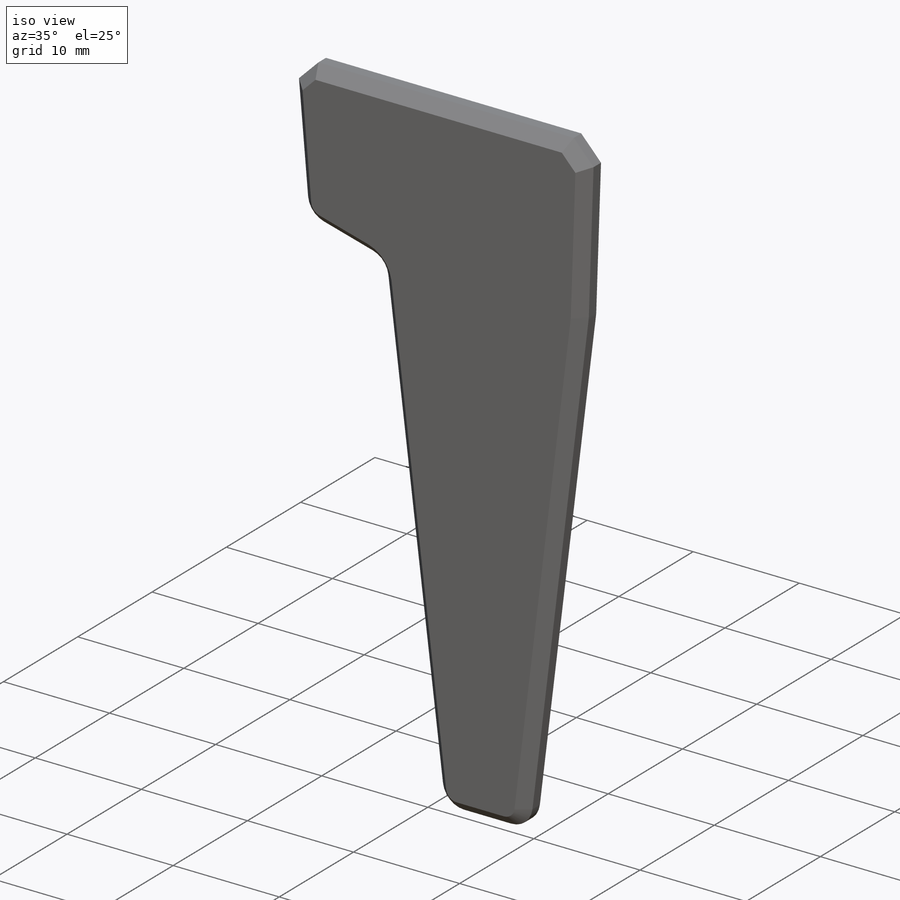
[diagram: iso view]
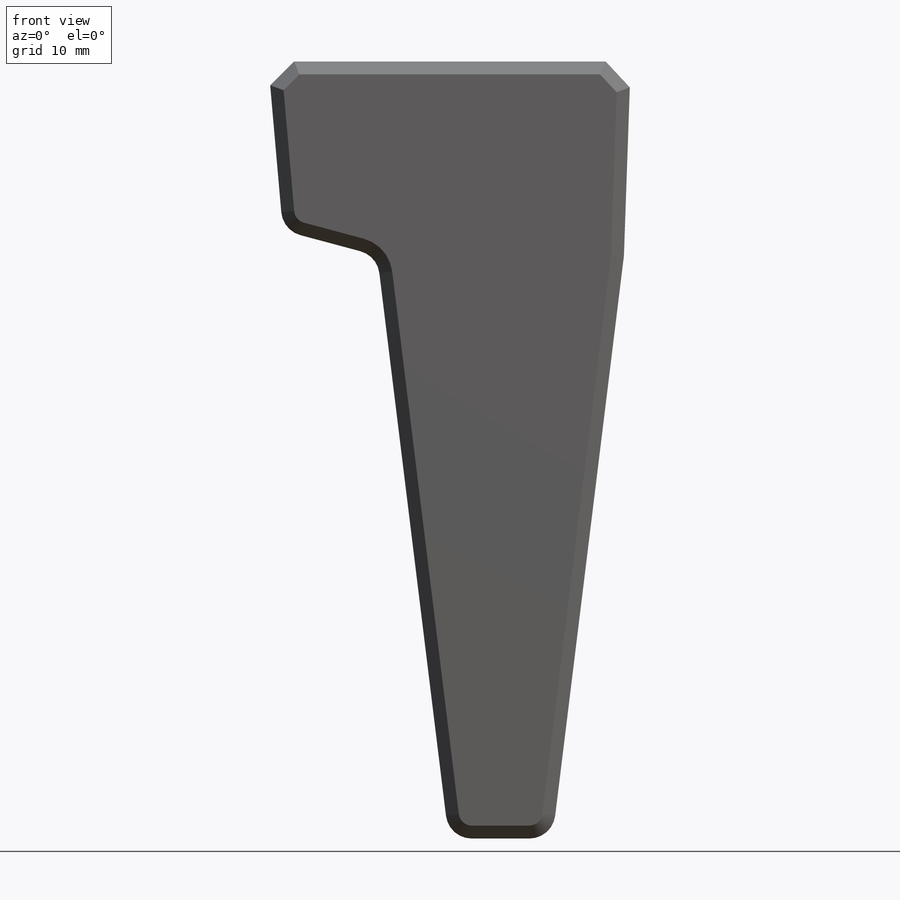
[diagram: front view]
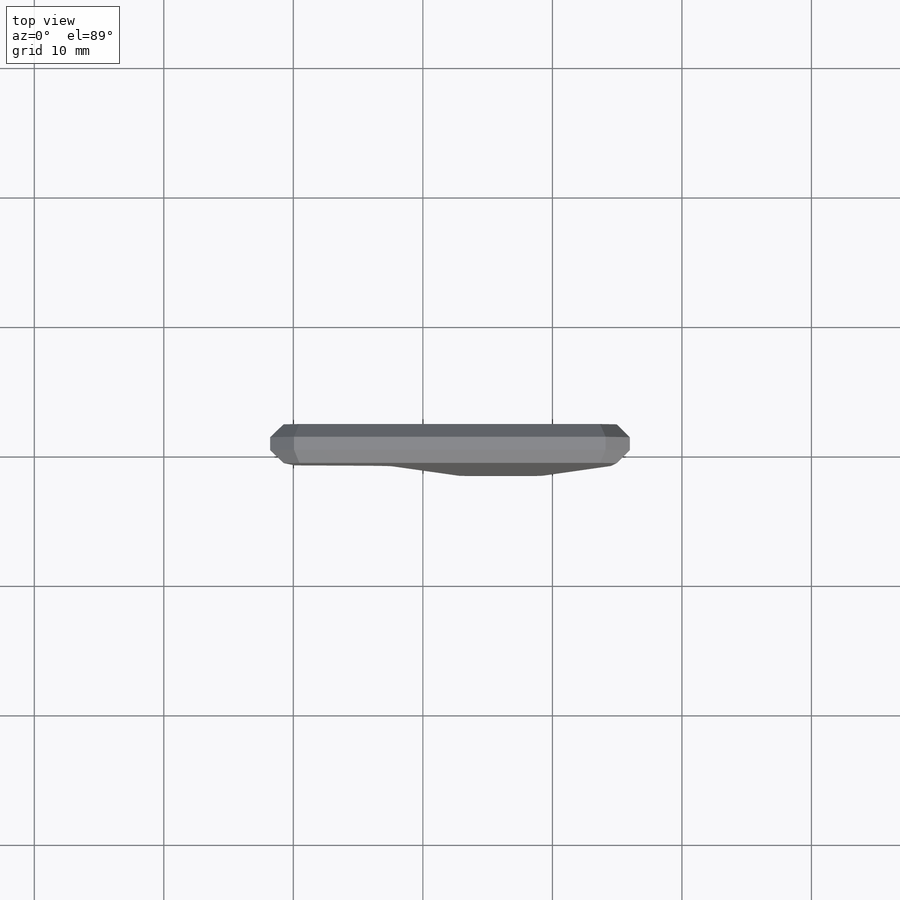
[diagram: top view]
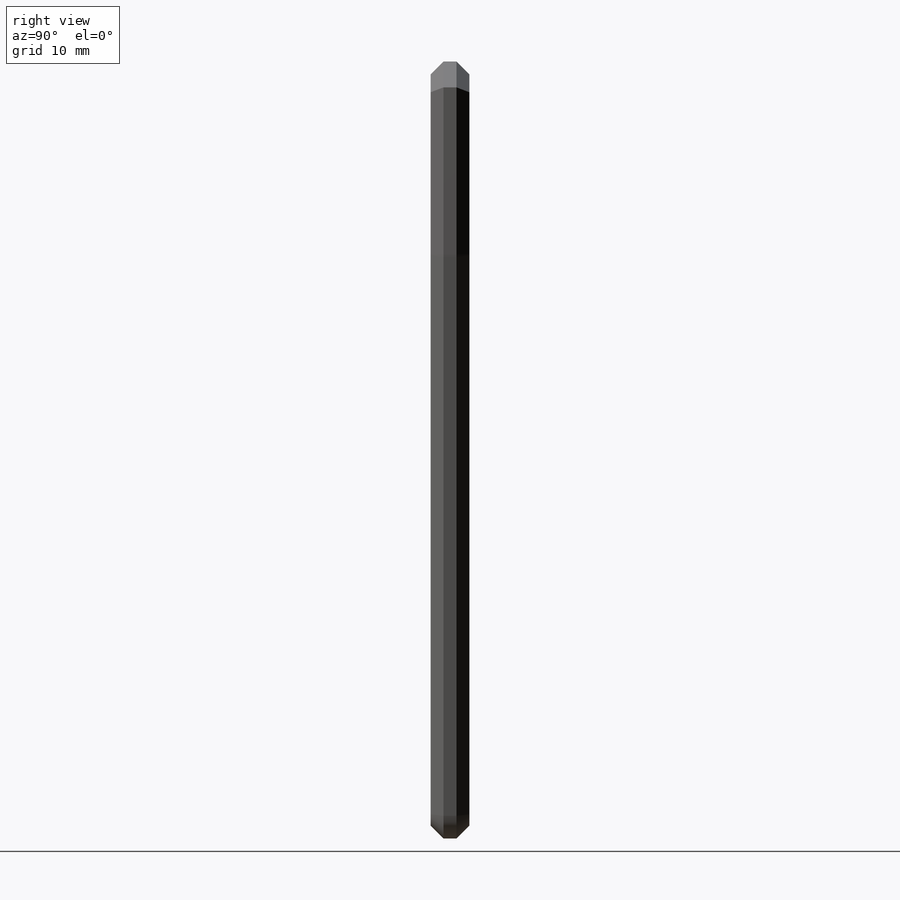
[diagram: right view]
SOLIDWORKS PART (.sldprt)
format: sldprt  version: not decoded by parser v0  size: 439,296 bytes
history: native  units: mm
features: sketch x5, fillet x5, surface_op x3, plane x2, extrude x2, chamfer x2, material x1, mirror x1 (+13 scaffold rows collapsed)
feature tree (34):
  scaffold x13  (default folders/planes/origin — collapsed)
  material  "Material <not specified>"
  sketch  "Sketch3"  dims[c1.D1=30.0mm c1.D2=10.0mm c1.D3=10.0mm c2.D3=70.0deg c2.D4=50.0mm c2.D5=~0.130835mm]
  plane  "Plane1"
  sketch  "Sketch4"  dims[D1=5.0mm]
  surface_op  "Surface-Extrude1"
  plane  "Plane2"
  sketch  "Sketch5"  dims[c1.D2=3.4mm c1.D1=6.8mm c2.D2=20.0mm]
  extrude  "Boss-Extrude3"  Depth=3mm
  chamfer  "Chamfer5"  Distance=0.5mm Angle=45deg
  sketch  "Sketch9"  dims[c1.D1=12.0mm c1.D2=~53.208889mm c2.D2=7.0deg c2.D3=~53.208889mm c3.D3=7.0deg c3.D4=10.0mm c3.D5=~11.974598mm c4.D5=105.0deg c4.D6=10.0mm c5.D6=125.0deg c5.D7=~37.766014mm c6.D7=103.0deg c7.D7=45.0mm c7.D8=12.0mm c7.D9=2.0mm]
  surface_op  "Surface-Extrude2"
  sketch  "Sketch11"  dims[c1.D1=~11.954946mm c2.D1=15.0deg c3.D1=~11.060822mm c4.D1=20.0deg c4.D2=~13.084524mm c5.D2=45.0deg c5.D3=~23.783121mm c6.D3=7.0deg c6.D4=10.0mm c6.D5=10.0mm c6.D6=12.0mm c6.D7=8.0mm]
  surface_op  "Surface-Extrude4"
  chamfer  "Surface-Plane2"  [1 undecoded]
  extrude  "Surface-Trim2"  [1 undecoded]
  fillet  "Fillet2"  Radius=2mm
  fillet  "Fillet4"  Radius=10mm
  fillet  "Fillet5"  Radius=2mm
  fillet  "Fillet6"  Radius=2mm
  fillet  "Fillet7"  Radius=1mm
  mirror  "Mirror2"
decode coverage: 12 of 18 modeling features carry decoded parameters
note: ~ marks probable driven/reference dimensions
note: 2 parameter values undecoded
note: suppression state not decoded; provenance and decode notes live in map.json
